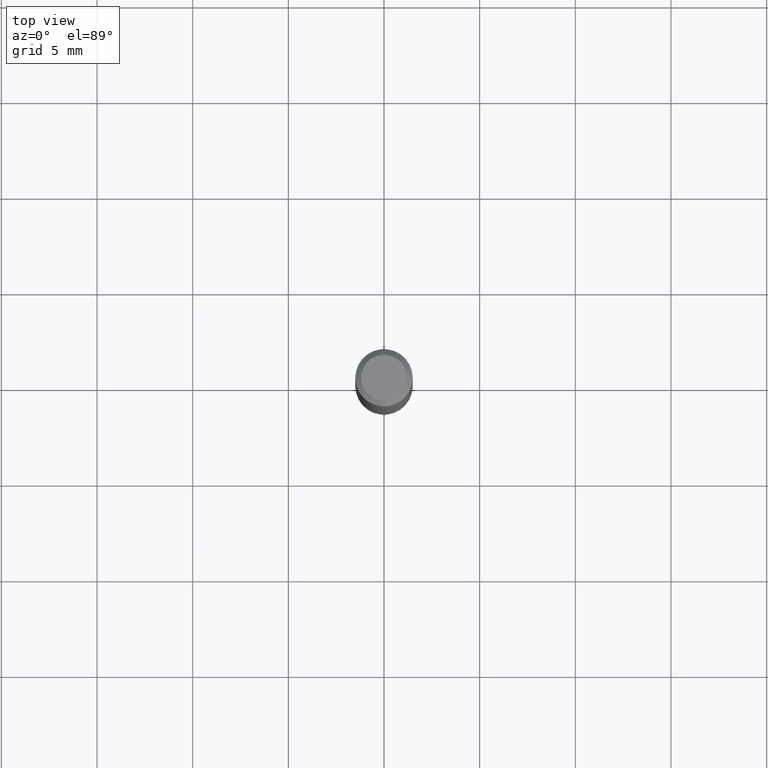
[diagram: clean part render]
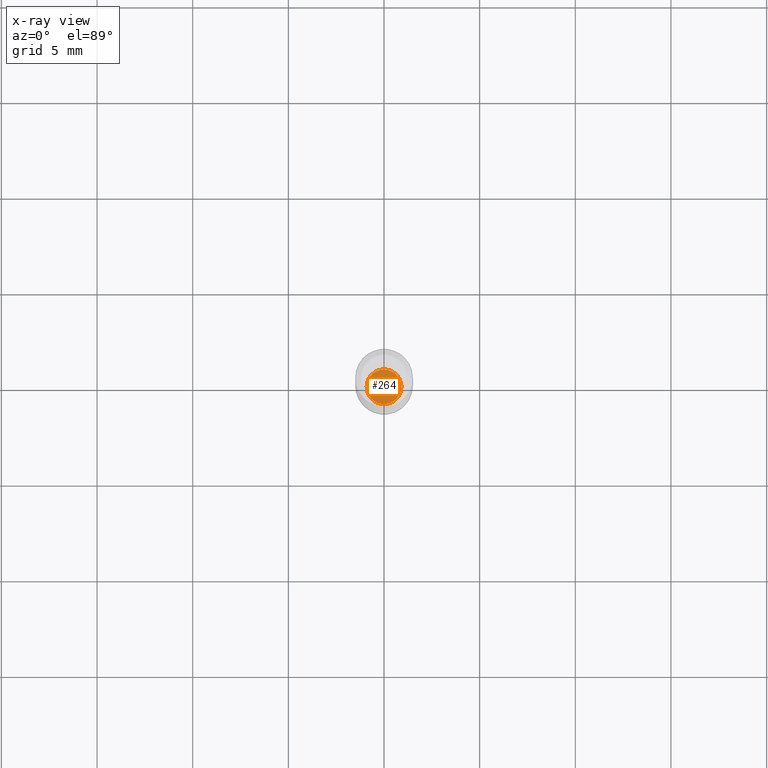
[diagram: x-ray — body ghosted, one internal face saturated and labeled with its STEP entity id]
A machine part, top view, then the same camera in x-ray: the body is ghosted and one INTERNAL B-rep face — a face not visible from any outside direction — is saturated and labeled: STEP entity #264.
In plain terms, the highlighted planar face has unit normal (-0, 0, 1).
Its self-contained STEP definition (entity closure, byte-faithful):
#101 = AXIS2_PLACEMENT_3D ( 'NONE', #359, #296, #137 ) ;
#105 = DIRECTION ( 'NONE',  ( 1.000000000000000000, -6.982962677686261189E-15, 0.000000000000000000 ) ) ;
#110 = AXIS2_PLACEMENT_3D ( 'NONE', #247, #321, #156 ) ;
#112 = CIRCLE ( 'NONE', #297, 0.03570000000000000256 ) ;
#137 = DIRECTION ( 'NONE',  ( 1.000000000000000000, -6.982962677686265922E-15, 4.876176775795935793E-29 ) ) ;
#156 = DIRECTION ( 'NONE',  ( 1.000000000000000000, -6.982962677686261189E-15, 0.000000000000000000 ) ) ;
#174 = EDGE_LOOP ( 'NONE', ( #188, #486 ) ) ;
#176 = EDGE_CURVE ( 'NONE', #401, #434, #464, .T. ) ;
#182 = DIRECTION ( 'NONE',  ( -2.445468806185136597E-29, 3.491481338843145583E-15, 1.000000000000000000 ) ) ;
#188 = ORIENTED_EDGE ( 'NONE', *, *, #176, .F. ) ;
#247 = CARTESIAN_POINT ( 'NONE',  ( 2.676565608369632355E-29, -3.821426325363822773E-15, -1.094500000000000028 ) ) ;
#264 = ADVANCED_FACE ( 'NONE', ( #467 ), #368, .F. ) ;
#296 = DIRECTION ( 'NONE',  ( -2.438088387897960049E-29, 3.491481338843145188E-15, 1.000000000000000000 ) ) ;
#297 = AXIS2_PLACEMENT_3D ( 'NONE', #446, #182, #105 ) ;
#301 = CARTESIAN_POINT ( 'NONE',  ( -0.03570000000000000256, -3.565113341523356133E-15, -1.094500000000000028 ) ) ;
#321 = DIRECTION ( 'NONE',  ( -2.445468806185136597E-29, 3.491481338843145583E-15, 1.000000000000000000 ) ) ;
#359 = CARTESIAN_POINT ( 'NONE',  ( -2.476797249303447820E-30, -8.009112080357571040E-15, -1.094500000000000028 ) ) ;
#368 = PLANE ( 'NONE',  #101 ) ;
#401 = VERTEX_POINT ( 'NONE', #437 ) ;
#434 = VERTEX_POINT ( 'NONE', #301 ) ;
#437 = CARTESIAN_POINT ( 'NONE',  ( 0.03570000000000000256, -4.070718092957222949E-15, -1.094500000000000028 ) ) ;
#446 = CARTESIAN_POINT ( 'NONE',  ( 2.676565608369632355E-29, -3.821426325363822773E-15, -1.094500000000000028 ) ) ;
#453 = EDGE_CURVE ( 'NONE', #434, #401, #112, .T. ) ;
#464 = CIRCLE ( 'NONE', #110, 0.03570000000000000256 ) ;
#467 = FACE_OUTER_BOUND ( 'NONE', #174, .T. ) ;
#486 = ORIENTED_EDGE ( 'NONE', *, *, #453, .F. ) ;